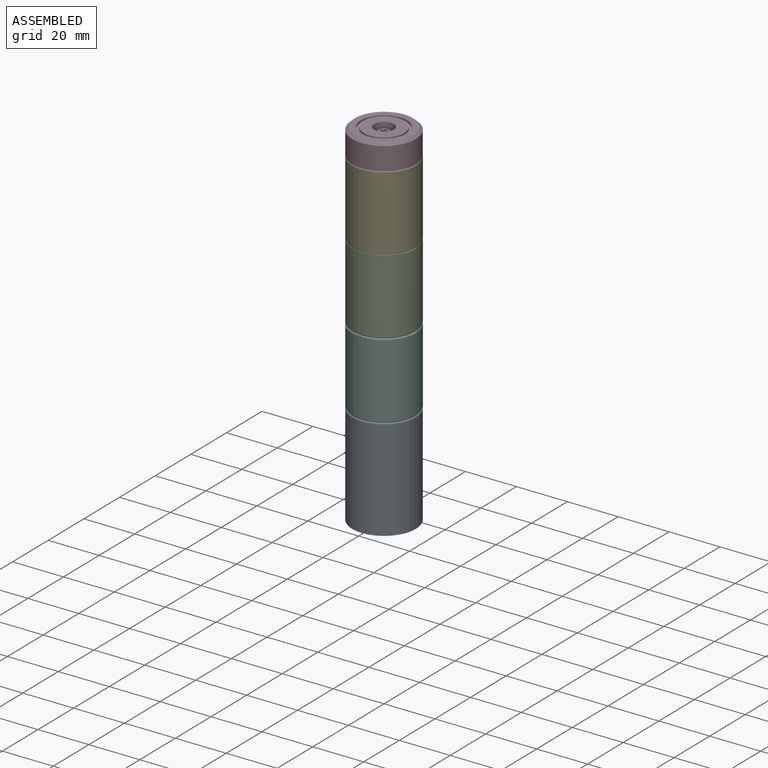
[diagram: assembled view]
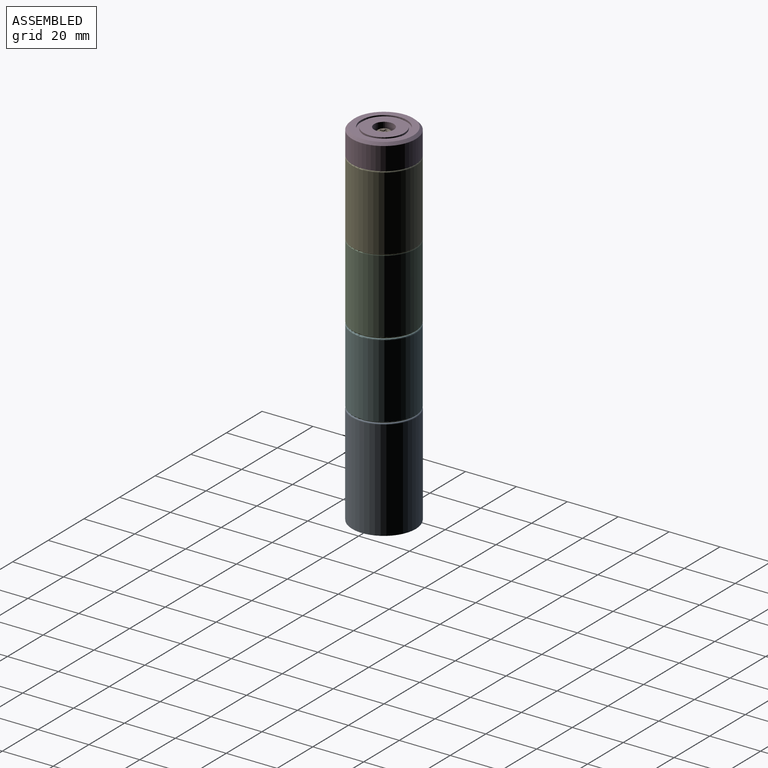
[diagram: assembled view, second angle]
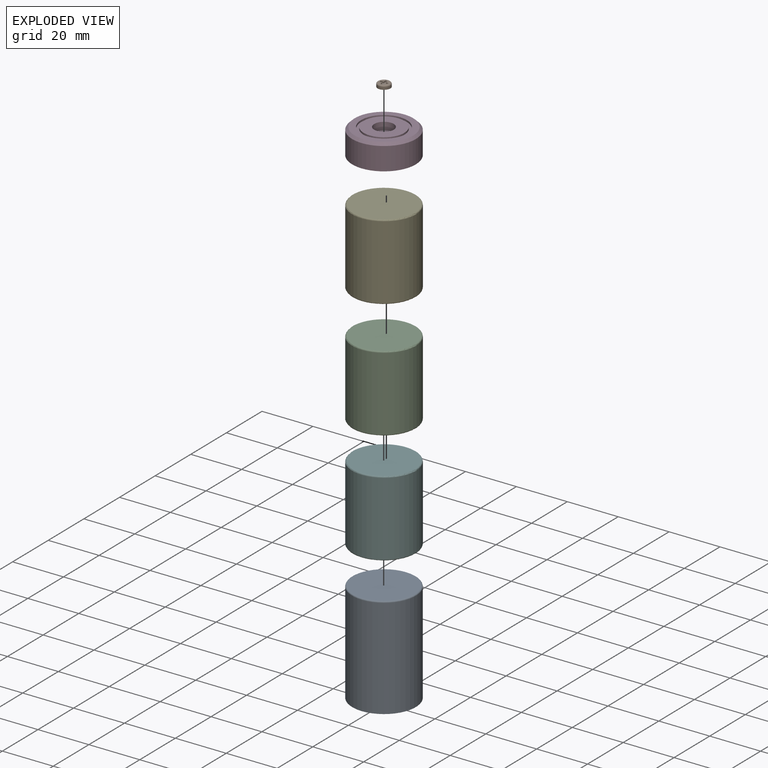
[diagram: exploded view]
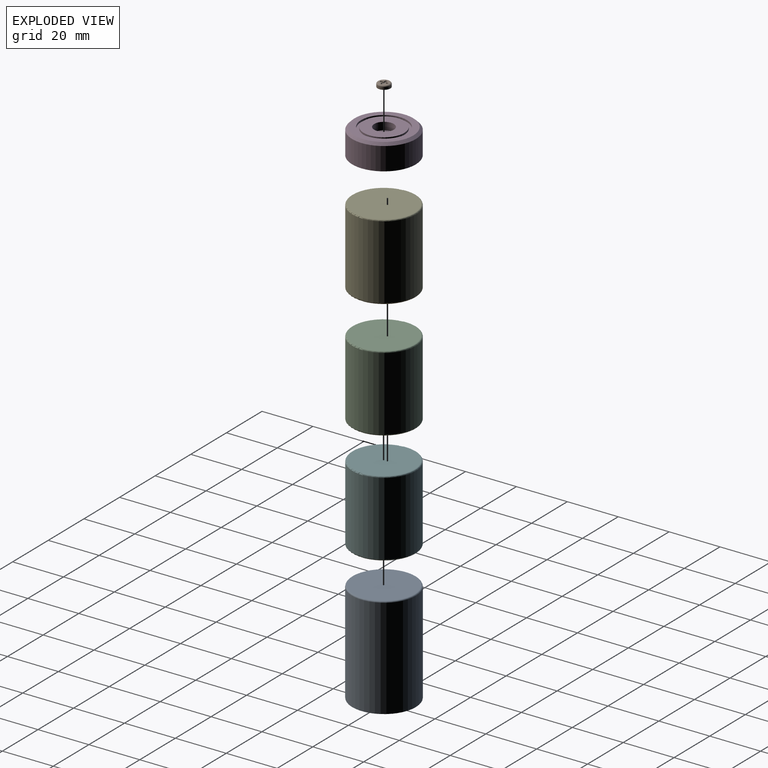
[diagram: exploded view, second angle]
ASSEMBLY  parts=6 mates=5
PART A: 6 faces, bbox 27.1x27.1x40 mm
  f0: cylinder r=10.35mm len=33mm, axis (0,0,-1), area 2146mm2, adj f4,f5
  f1: torus R=12mm, axis (0,0,1), area 60.8mm2, adj f2,f3
  f2: cylinder r=12.5mm len=39.5mm, axis (0,0,-1), area 3102.3mm2, adj f1,f4
  f3: plane 24x24mm, normal (0,0,1), area 452.4mm2, adj f1
  f4: plane 25x25mm, normal (0,0,-1), area 154.3mm2, adj f0,f2
  f5: plane 20.7x20.7mm, normal (0,0,-1), area 336.5mm2, adj f0
PART B: 17 faces, bbox 5.4x5.4x1.5 mm
  f0: torus R=2mm, axis (0,0,1), area 11.4mm2, adj f1,f2
  f1: cylinder r=2.5mm len=5mm, axis (0,0,-1), area 15.7mm2, adj f0,f3
  f2: plane 4x4mm, normal (0,0,1), area 8.4mm2, adj f0,f4,f5,f6,f7,f8,f9,f10
  f3: plane 5x5mm, normal (0,0,-1), area 19.6mm2, adj f1
  f4: plane 0.8x0.5mm, normal (1,0,0), area 0.4mm2, adj f2,f5,f15,f16
  f5: plane 1.1x0.5mm, normal (0,-1,0), area 0.6mm2, adj f2,f4,f14,f16
  f6: plane 1.1x0.5mm, normal (0,-1,0), area 0.6mm2, adj f2,f7,f10,f16
  f7: plane 0.8x0.5mm, normal (-1,0,0), area 0.4mm2, adj f2,f6,f8,f16
  f8: plane 1.1x0.5mm, normal (0,1,0), area 0.6mm2, adj f2,f7,f9,f16
  f9: plane 1.1x0.5mm, normal (-1,0,0), area 0.6mm2, adj f2,f8,f12,f16
  f10: plane 1.1x0.5mm, normal (-1,0,0), area 0.6mm2, adj f2,f6,f11,f16
  f11: plane 0.8x0.5mm, normal (0,-1,0), area 0.4mm2, adj f2,f10,f14,f16
  f12: plane 0.8x0.5mm, normal (0,1,0), area 0.4mm2, adj f2,f9,f13,f16
  f13: plane 1.1x0.5mm, normal (1,0,0), area 0.6mm2, adj f2,f12,f15,f16
  f14: plane 1.1x0.5mm, normal (1,0,0), area 0.6mm2, adj f2,f5,f11,f16
  f15: plane 1.1x0.5mm, normal (0,1,0), area 0.6mm2, adj f2,f4,f13,f16
  f16: plane 3x3mm, normal (0,0,1), area 4.2mm2, adj f4,f5,f6,f7,f8,f9,f10,f11
PART C: 5 faces, bbox 27.1x27.1x30 mm
  f0: torus R=12mm, axis (0,0,1), area 60.8mm2, adj f2,f4
  f1: torus R=12mm, axis (0,0,1), area 60.8mm2, adj f2,f3
  f2: cylinder r=12.5mm len=29mm, axis (0,0,-1), area 2277.7mm2, adj f0,f1
  f3: plane 24x24mm, normal (0,0,1), area 452.4mm2, adj f1
  f4: plane 24x24mm, normal (0,0,-1), area 452.4mm2, adj f0
PART D: 11 faces, bbox 25x25x10 mm
  f0: cylinder r=8mm len=16mm, axis (0,0,1), area 35.2mm2, adj f6,f10
  f1: cylinder r=9mm len=18mm, axis (0,0,1), area 39.6mm2, adj f7,f10
  f2: cylinder r=1.6mm len=7mm, axis (0,0,1), area 70.4mm2, adj f8,f9
  f3: cylinder r=3.85mm len=7.7mm, axis (0,0,1), area 72.6mm2, adj f6,f9
  f4: cone r=11.5mm half-angle=45deg, axis (0,0,-1), area 106.6mm2, adj f5,f7
  f5: cylinder r=12.5mm len=25mm, axis (0,0,-1), area 706.9mm2, adj f4,f8
  f6: plane 16x16mm, normal (0,0,1), area 154.5mm2, adj f0,f3
  f7: plane 23x23mm, normal (0,0,1), area 161mm2, adj f1,f4
  f8: plane 25x25mm, normal (0,0,-1), area 482.8mm2, adj f2,f5
  f9: plane 7.7x7.7mm, normal (0,0,1), area 38.5mm2, adj f2,f3
  f10: plane 18x18mm, normal (0,0,1), area 53.4mm2, adj f0,f1
PART E: 5 faces, bbox 27.1x27.1x30 mm
  f0: torus R=12mm, axis (0,0,1), area 60.8mm2, adj f2,f4
  f1: torus R=12mm, axis (0,0,1), area 60.8mm2, adj f2,f3
  f2: cylinder r=12.5mm len=29mm, axis (0,0,-1), area 2277.7mm2, adj f0,f1
  f3: plane 24x24mm, normal (0,0,1), area 452.4mm2, adj f1
  f4: plane 24x24mm, normal (0,0,-1), area 452.4mm2, adj f0
PART F: 5 faces, bbox 27.1x27.1x30 mm
  f0: torus R=12mm, axis (0,0,1), area 60.8mm2, adj f2,f4
  f1: torus R=12mm, axis (0,0,1), area 60.8mm2, adj f2,f3
  f2: cylinder r=12.5mm len=29mm, axis (0,0,-1), area 2277.7mm2, adj f0,f1
  f3: plane 24x24mm, normal (0,0,1), area 452.4mm2, adj f1
  f4: plane 24x24mm, normal (0,0,-1), area 452.4mm2, adj f0
PLACE A at identity
PLACE B t=(0,0,-0.5)mm
PLACE C at identity
PLACE D t=(0,0,-0.5)mm
PLACE E t=(0,0,-0.5)mm
PLACE F at identity
MATE fastened E.f0 <-> C.f0  axis (0,0,-1) through (0,0,100)mm
MATE fastened F.f0 <-> A.f0  axis (0,0,-1) through (0,0,40)mm
MATE fastened F.f0 <-> C.f0  axis (0,0,1) through (0,0,70)mm
MATE fastened B.f0 <-> D.f0  axis (0,0,-1) through (0,0,136.5)mm
MATE fastened D.f0 <-> E.f0  axis (0,0,-1) through (0,0,129.5)mm
